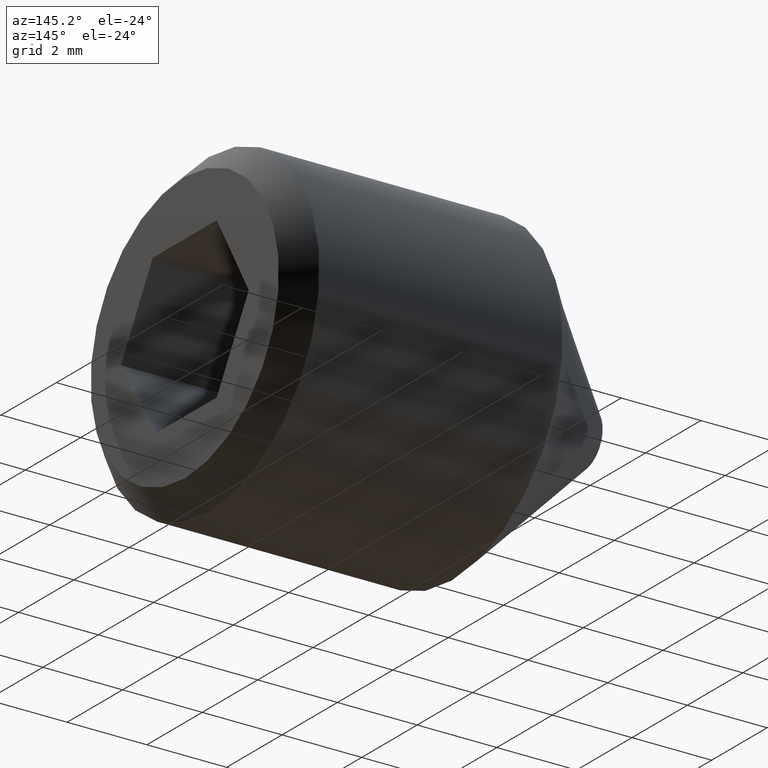
[diagram: clean part render]
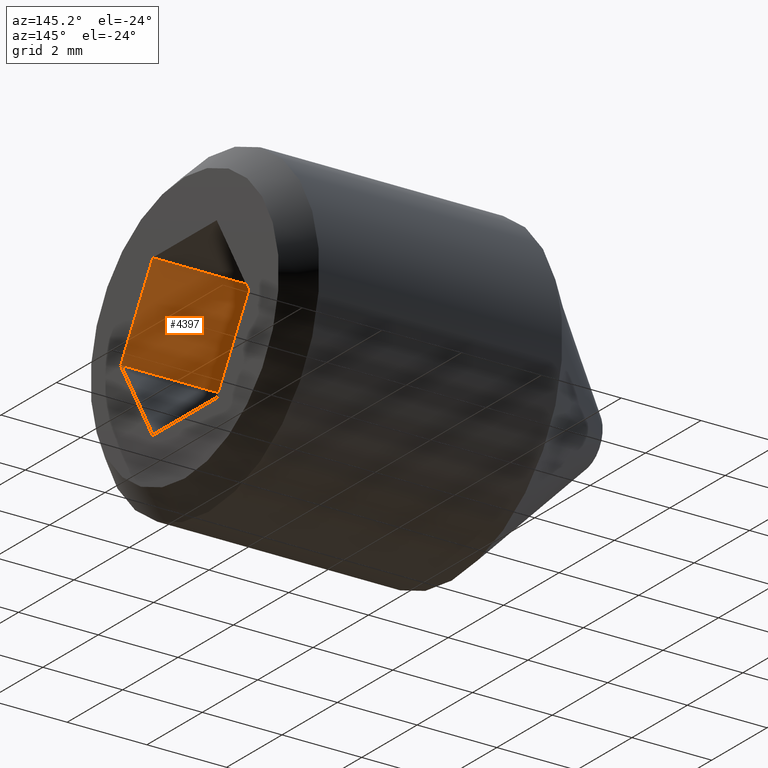
[diagram: same view with one face highlighted and labeled with its STEP entity id]
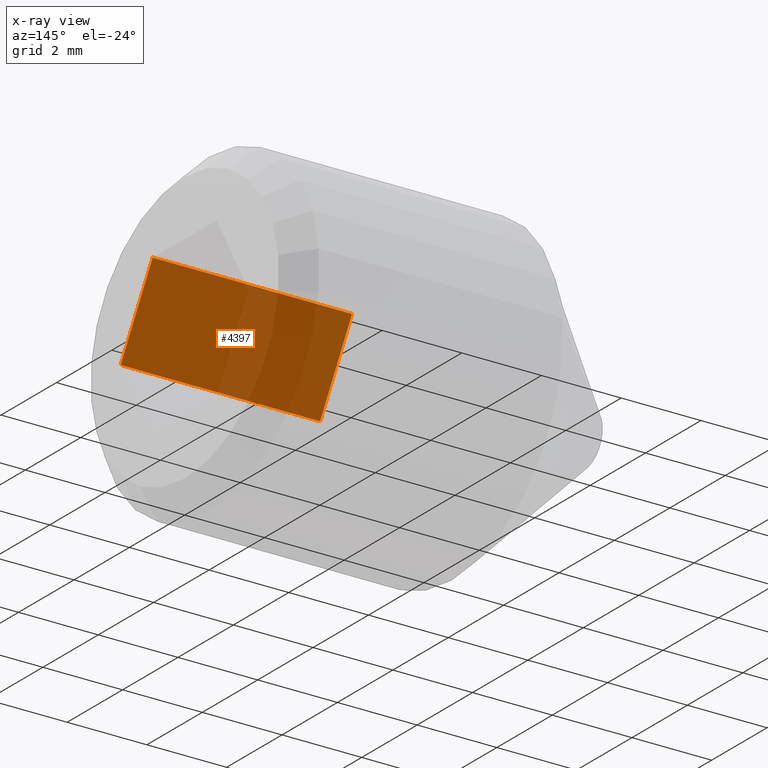
[diagram: x-ray of the same camera — body ghosted, the highlighted face saturated]
A machine part, auxiliary view. The second image highlights one B-rep face of the part: STEP entity #4397.
The next image is the same camera in x-ray: the body ghosted, the highlighted face saturated — about 51% of this face is hidden behind the body in this view.
In plain terms, the highlighted planar face has unit normal (-0, -0.866, 0.5).
Its self-contained STEP definition (entity closure, byte-faithful):
#182 = DIRECTION ( 'NONE',  ( 1.000000000000000000, -0.0000000000000000000, 6.123031769111886300E-017 ) ) ;
#720 = LINE ( 'NONE', #2330, #1420 ) ;
#1143 = DIRECTION ( 'NONE',  ( -3.061515884555943800E-017, -0.8660254037844387100, 0.5000000000000001100 ) ) ;
#1420 = VECTOR ( 'NONE', #10403, 1000.000000000000100 ) ;
#2243 = VERTEX_POINT ( 'NONE', #9139 ) ;
#2330 = CARTESIAN_POINT ( 'NONE',  ( 5.000000000000000000, -1.154700538379251000, 1.999999999999999600 ) ) ;
#2335 = EDGE_CURVE ( 'NONE', #2243, #6827, #6230, .T. ) ;
#2422 = EDGE_CURVE ( 'NONE', #5736, #2243, #720, .T. ) ;
#2961 = EDGE_CURVE ( 'NONE', #4292, #6827, #6095, .T. ) ;
#3339 = LINE ( 'NONE', #11450, #5192 ) ;
#3828 = VECTOR ( 'NONE', #182, 1000.000000000000000 ) ;
#3879 = PLANE ( 'NONE',  #9122 ) ;
#4292 = VERTEX_POINT ( 'NONE', #9034 ) ;
#4397 = ADVANCED_FACE ( 'NONE', ( #4519 ), #3879, .F. ) ;
#4519 = FACE_OUTER_BOUND ( 'NONE', #9676, .T. ) ;
#4927 = ORIENTED_EDGE ( 'NONE', *, *, #9848, .T. ) ;
#5192 = VECTOR ( 'NONE', #9638, 1000.000000000000000 ) ;
#5606 = DIRECTION ( 'NONE',  ( 0.0000000000000000000, -0.5000000000000000000, -0.8660254037844386000 ) ) ;
#5736 = VERTEX_POINT ( 'NONE', #7868 ) ;
#6095 = LINE ( 'NONE', #7926, #9775 ) ;
#6230 = LINE ( 'NONE', #6590, #3828 ) ;
#6590 = CARTESIAN_POINT ( 'NONE',  ( 5.000000000000000000, -2.309401076758502500, 1.256016596573813500E-016 ) ) ;
#6827 = VERTEX_POINT ( 'NONE', #9159 ) ;
#7868 = CARTESIAN_POINT ( 'NONE',  ( 5.000000000000000000, -1.154700538379251000, 1.999999999999999600 ) ) ;
#7926 = CARTESIAN_POINT ( 'NONE',  ( 10.00000000000000000, -1.154700538379251000, 2.000000000000000000 ) ) ;
#8427 = CARTESIAN_POINT ( 'NONE',  ( 5.000000000000000000, -1.154700538379251000, 1.999999999999999600 ) ) ;
#9034 = CARTESIAN_POINT ( 'NONE',  ( 10.00000000000000000, -1.154700538379251000, 2.000000000000000000 ) ) ;
#9122 = AXIS2_PLACEMENT_3D ( 'NONE', #8427, #1143, #5606 ) ;
#9139 = CARTESIAN_POINT ( 'NONE',  ( 5.000000000000000000, -2.309401076758502500, 1.256016596573813500E-016 ) ) ;
#9159 = CARTESIAN_POINT ( 'NONE',  ( 10.00000000000000000, -2.309401076758502900, 2.168404344971008900E-016 ) ) ;
#9638 = DIRECTION ( 'NONE',  ( 1.000000000000000000, -0.0000000000000000000, 6.123031769111886300E-017 ) ) ;
#9676 = EDGE_LOOP ( 'NONE', ( #9796, #10384, #10850, #4927 ) ) ;
#9775 = VECTOR ( 'NONE', #10808, 1000.000000000000100 ) ;
#9796 = ORIENTED_EDGE ( 'NONE', *, *, #2961, .T. ) ;
#9848 = EDGE_CURVE ( 'NONE', #5736, #4292, #3339, .T. ) ;
#10384 = ORIENTED_EDGE ( 'NONE', *, *, #2335, .F. ) ;
#10403 = DIRECTION ( 'NONE',  ( 0.0000000000000000000, -0.4999999999999999400, -0.8660254037844386000 ) ) ;
#10808 = DIRECTION ( 'NONE',  ( 0.0000000000000000000, -0.4999999999999999400, -0.8660254037844386000 ) ) ;
#10850 = ORIENTED_EDGE ( 'NONE', *, *, #2422, .F. ) ;
#11450 = CARTESIAN_POINT ( 'NONE',  ( 5.000000000000000000, -1.154700538379251000, 1.999999999999999600 ) ) ;